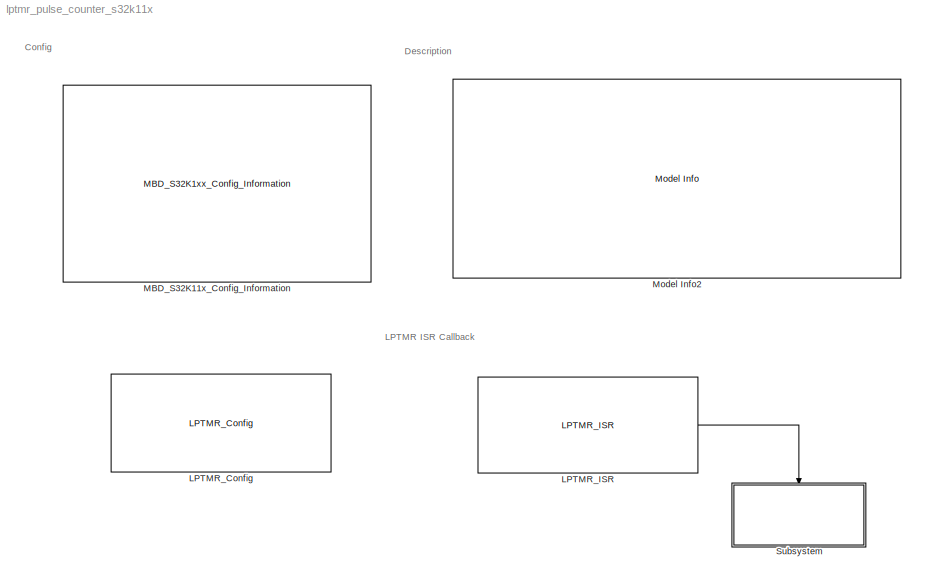
MODEL lptmr_pulse_counter_s32k11x
KIND model
CONFIG InitFcn = mbd_s32k_consistency_checks(bdroot(gcs));
BLOCK [Reference] LPTMR_Config  REF=mbd_s32k1xx_ec_toolbox/Core and System Blocks/LPTMR Blocks/LPTMR_Config
  Ports = []
  SID = 2
  SourceBlock = mbd_s32k1xx_ec_toolbox/Core and System Blocks/LPTMR Blocks/LPTMR_Config
  SourceType = lptmr_s32k_config
  bypass_prescaler = on
  compare_value = 3
  compare_value_units = Ticks
  enable_isr = on
  free_run = off
  input_clock = SIRC DIV2 clock
  pin_gpio = PTD5: [LPTMR0_ALT2 | Low Power Timer Input Channel]
  pin_polarity = Count pulse on rising edge
  pin_select = Count pulses from pin alternative 2
  pin_trgmux_source = Trigger MUX input 4
  prescaler = Timer mode: prescaler 2, Glitch filter mode: invalid
  show_adv_opts = on
  start_counter = on
  work_mode = Pulse Counter mode
BLOCK [Reference] LPTMR_ISR  REF=mbd_s32k1xx_ec_toolbox/Core and System Blocks/LPTMR Blocks/LPTMR_ISR
  Ports = [0, 1]
  SID = 3
  SourceBlock = mbd_s32k1xx_ec_toolbox/Core and System Blocks/LPTMR Blocks/LPTMR_ISR
  SourceType = lptmr_s32k_isr
BLOCK [Reference] MBD_S32K11x_Config_Information  REF=mbd_s32k1xx_ec_toolbox/MBD_S32K1xx_Config_Information
  ADC_PcrCheckEnDis = on
  AMMCLIB_PcrCheckEnDis = on
  CMP_PcrCheckEnDis = on
  CSEc_PcrCheckEnDis = on
  ConfigParams_PcrCheckEnDis = on
  FM_PcrCheckEnDis = on
  FTM_Dual_Edge_Inputs_PcrCheckEnDis = on
  FTM_Hall_Sensor_Inputs_PcrCheckEnDis = on
  FTM_Input_Edge_Inputs_PcrCheckEnDis = on
  FTM_PWM_PcrCheckEnDis = on
  FTM_Quadrature_Inputs_PcrCheckEnDis = on
  FlexCAN_PcrCheckEnDis = on
  FlexIO_PcrCheckEnDis = on
  GPIO_InputPcrCheckEnDis = on
  GPIO_OutputPcrCheckEnDis = on
  LIN_PcrCheckEnDis = on
  LPI2C_PcrCheckEnDis = on
  LPSPI_PcrCheckEnDis = on
  LPTMR_PcrCheckEnDis = on
  LPUART_PcrCheckEnDis = on
  ModelRef_PcrCheckEnDis = on
  PDB0_PcrCheckEnDis = on
  PIT_PcrCheckEnDis = on
  Ports = []
  Profile_PcrCheckEnDis = on
  RTC_PcrCheckEnDis = on
  SBC_PcrCheckEnDis = on
  SID = 1
  SourceBlock = mbd_s32k1xx_ec_toolbox/MBD_S32K1xx_Config_Information
  SourceType = MBDTBX_EC_S32K
  WDOG_PcrCheckEnDis = on
  config_params = []
  disp_str = Target : S32K144-64KB_SRAM\nPackage : 100-pin\nSystem clock : 80 MHz\nXTAL clock : External 8 MHz\nCompiler : IAR\nTarget Type : FLASH\nDownload Code after build : off\nStep Tick Interrupt Priority : 15
  ds_import_enable = on
  eDMA_PcrCheckEnDis = on
  gcc_target_assemble_opts = -mcpu=cortex-m0plus -mthumb -g
  gcc_target_compile_opts = -mcpu=cortex-m0plus -mthumb -O1 -g -gstrict-dwarf
  gcc_target_default_lcf = on
  gcc_target_link_opts = -mcpu=cortex-m0plus -mthumb
  gcc_target_user_lcf = S32K116_17_flash.ld
  ghs_target_assemble_opts = -mcpu=cortexm0plus -mthumb -fsoft --gnu_asm
  ghs_target_compile_opts = -mcpu=cortexm0plus -mthumb -fsoft -Ogeneral -Wundef -Wimplicit-int -Wshadow -Wtrigraphs --no_commons --gnu_asm -gnu99 -gdwarf-2 -G
  ghs_target_default_lcf = on
  ghs_target_link_opts = -mcpu=cortexm0plus -mthumb -fsoft
  ghs_target_user_lcf = S32K116_17_flash.ld
  iar_target_assemble_opts = --thumb
  iar_target_compile_opts = --thumb -Ol -e --debug --dlib_config normal
  iar_target_default_lcf = on
  iar_target_link_opts = --no_exceptions --vfe --inline
  iar_target_user_lcf = S32K116_17_flash.icf
  mbdt_ver = 0
  mcu_steptick_prio = 3
  mcu_steptick_timer = LPIT Channel 0
  mcu_system_clock_freq = 40
  mcu_target_name = S32K116
  mcu_target_package = 48-LQFP
  mcu_target_sram_size = 17KB
  mcu_xtal_freq = External 40
  pil_download_enable = off
  pil_download_rate = 57600
  pil_opensda_drive = Custom
  pil_opensda_drive_custom = D
  pil_uart_instance = 0
  pil_uart_rx = PTA2: [LPUART0_RX | Receive]
  pil_uart_tx = PTA3: [LPUART0_TX | Transmit]
  rbl_com_port = Custom
  rbl_com_port_custom = COM1
  rbl_download_enable = on
  rbl_download_interface = OpenSDA
  rbl_restart_request = off
  rbl_start_delay = 5000
  target_compiler = GCC
  target_memory = FLASH
BLOCK [Reference] Model Info2  REF=simulink/Model-Wide\nUtilities/Model Info
  DisplayStringWithTags = Model Name: %<ModelName>\n\nDescription: %<Description>
  Frame = off
  HorizontalTextAlignment = Left
  LeftAlignmentValue = 0.02
  MaskDisplayString = Model Name: lptmr_pulse_counter_s32k11x\\n\\nDescription: This model demonstrates the \"Low Power Timer\" functionality by setting the peripheral\\n to work in Pulse Counter mode.\\n\\nValidation: When the processor boots up, it configures the LPTMR timer to Pulse Counter mode\\nto count 3 Ticks, on the ALT2 pin. In order to test the counter using the  SW2 push button as input.
  Ports = []
  SID = 10
  SourceBlock = simulink/Model-Wide\nUtilities/Model Info
  SourceProductBaseCode = SL
  SourceProductName = Simulink
  SourceType = CMBlock
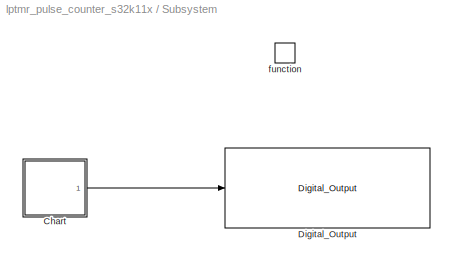
BLOCK [SubSystem] Subsystem
  Ports = [0, 0, 0, 1]
  RequestExecContextInheritance = off
  SID = 6
  Variant = off
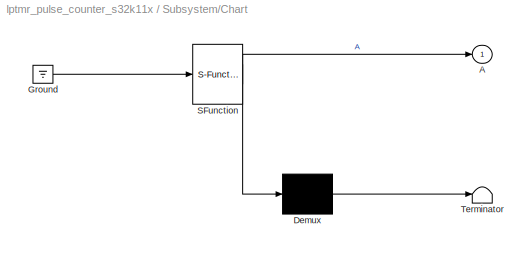
BLOCK [SubSystem] Subsystem/Chart
  ErrorFcn = Stateflow.Translate.translate
  PermitHierarchicalResolution = ExplicitOnly
  Ports = [0, 1]
  RequestExecContextInheritance = off
  SFBlockType = Chart
  SID = 4
  TreatAsAtomicUnit = on
  Variant = off
BLOCK [Outport] Subsystem/Chart/ A
  IconDisplay = Port number
  SID = 4::6
BLOCK [Demux] Subsystem/Chart/ Demux 
  Outputs = 1
  Ports = [1, 1]
  SID = 4::36
BLOCK [Ground] Subsystem/Chart/ Ground 
  SID = 4::38
BLOCK [S-Function] Subsystem/Chart/ SFunction 
  EnableBusSupport = off
  FunctionName = sf_sfun
  PortCounts = [1 2]
  Ports = [1, 2]
  SFcnIsStateOwnerBlock = off
  SFunctionDeploymentMode = off
  SID = 4::35
  Tag = Stateflow S-Function lptmr_pulse_counter_s32k11x 3
BLOCK [Terminator] Subsystem/Chart/ Terminator 
  SID = 4::37
BLOCK [Reference] Subsystem/Digital_Output  REF=mbd_s32k1xx_ec_toolbox/GPIO Blocks/Digital_Output
  Ports = [1]
  SID = 5
  SourceBlock = mbd_s32k1xx_ec_toolbox/GPIO Blocks/Digital_Output
  SourceType = gpio_s32k_output
  drive_strength = Low
  gpio_pin = PTE8: [PTE8 | Port E I/O]
  init_val = Low
BLOCK [TriggerPort] Subsystem/function
  Ports = []
  SID = 7
  StatesWhenEnabling = held
  TriggerType = function-call
  VariantControl = Variant
ANNOTATION (root): Config
ANNOTATION (root): Description
ANNOTATION (root): LPTMR ISR Callback
LINE LPTMR_ISR:1 -> Subsystem:trigger
LINE Subsystem/Chart/ Demux :1 -> Subsystem/Chart/ Terminator :1
LINE Subsystem/Chart/ Ground :1 -> Subsystem/Chart/ SFunction :1
LINE Subsystem/Chart/ SFunction :1 -> Subsystem/Chart/ Demux :1
LINE Subsystem/Chart/ SFunction :2 -> Subsystem/Chart/ A:1
LINE Subsystem/Chart:1 -> Subsystem/Digital_Output:1
CHART Subsystem/Chart states=2 transitions=3
  STATE_LABEL 'A'
  STATE_LABEL 'A1'
